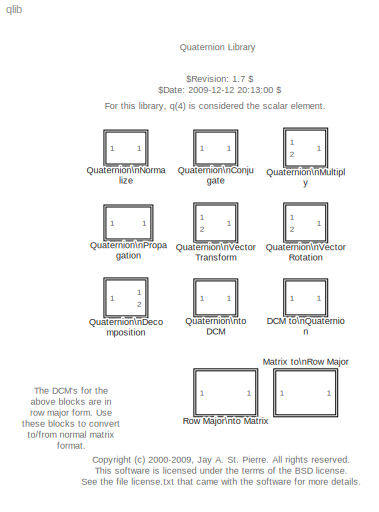
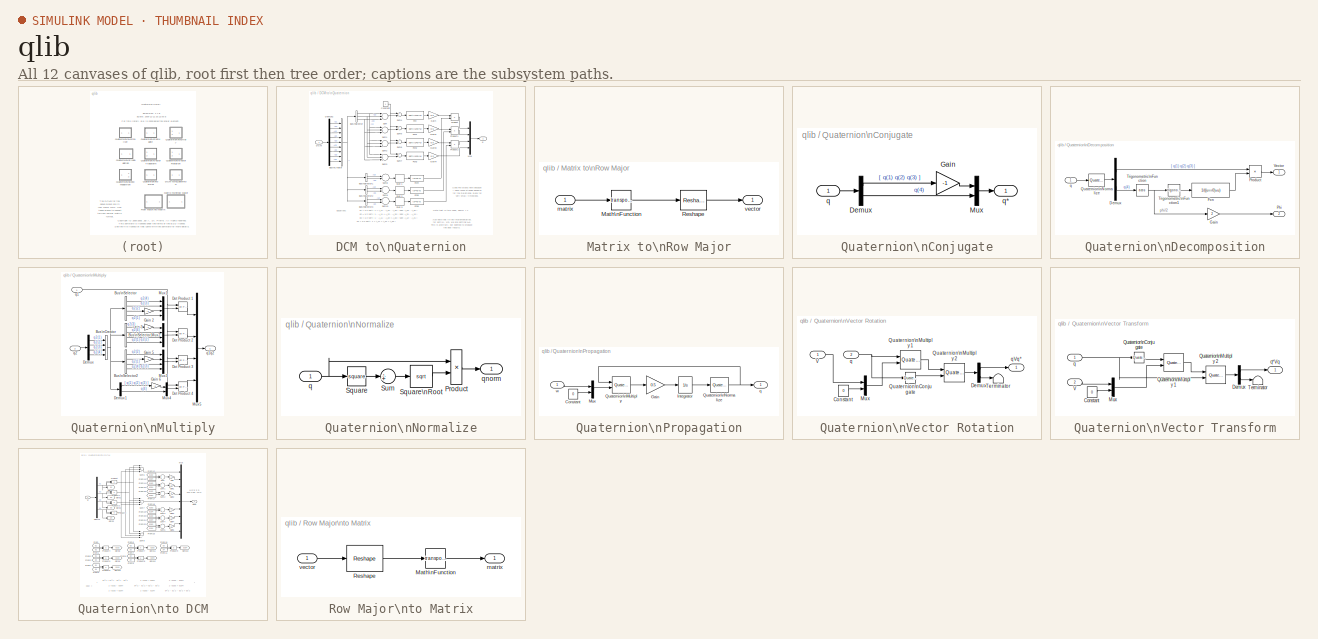
[diagram: thumbnail index - all 12 canvases of the model, root first then tree order]
MODEL qlib
KIND library
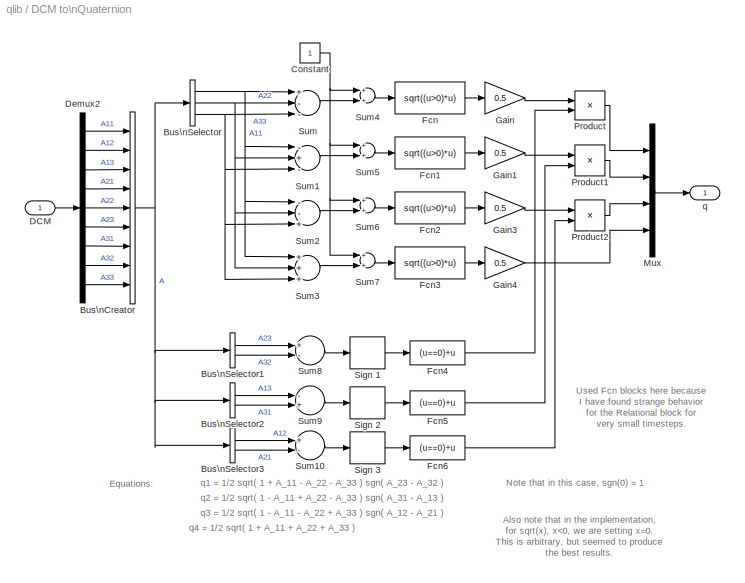
BLOCK [SubSystem] DCM to\nQuaternion
  FunctionWithSeparateData = off
  MaskDescription = Converts a direction cosine matrix (DCM) to a quaternion that would perform the equivalent vector transformation, i.e., q*vq = Rv, where R is the DCM, v is a vector, and q is the quaternion.\n\nNote that for purposes of quaternion-vector multiplication, a vector is treated as a quaterion with a scalar element of zero.
  MaskIconFrame = on
  MaskIconOpaque = on
  MaskIconRotate = none
  MaskIconUnits = autoscale
  MaskType = DCM to Quaternion
  MinAlgLoopOccurrences = off
  Ports = [1, 1]
  RTWSystemCode = Auto
BLOCK [BusCreator] DCM to\nQuaternion/Bus\nCreator
  DisplayOption = bar
  Inputs = 9
  Ports = [9, 1]
BLOCK [BusSelector] DCM to\nQuaternion/Bus\nSelector
  OutputSignals = A11,A22,A33
  Ports = [1, 3]
BLOCK [BusSelector] DCM to\nQuaternion/Bus\nSelector1
  OutputSignals = A23,A32
  Ports = [1, 2]
BLOCK [BusSelector] DCM to\nQuaternion/Bus\nSelector2
  OutputSignals = A13,A31
  Ports = [1, 2]
BLOCK [BusSelector] DCM to\nQuaternion/Bus\nSelector3
  OutputSignals = A12,A21
  Ports = [1, 2]
BLOCK [Constant] DCM to\nQuaternion/Constant
BLOCK [Inport] DCM to\nQuaternion/DCM
  IconDisplay = Port number
  PortDimensions = 9
BLOCK [Demux] DCM to\nQuaternion/Demux2
  Outputs = 9
  Ports = [1, 9]
BLOCK [Fcn] DCM to\nQuaternion/Fcn
  Expr = sqrt((u>0)*u)
BLOCK [Fcn] DCM to\nQuaternion/Fcn1
  Expr = sqrt((u>0)*u)
BLOCK [Fcn] DCM to\nQuaternion/Fcn2
  Expr = sqrt((u>0)*u)
BLOCK [Fcn] DCM to\nQuaternion/Fcn3
  Expr = sqrt((u>0)*u)
BLOCK [Fcn] DCM to\nQuaternion/Fcn4
  Expr = (u==0)+u
BLOCK [Fcn] DCM to\nQuaternion/Fcn5
  Expr = (u==0)+u
BLOCK [Fcn] DCM to\nQuaternion/Fcn6
  Expr = (u==0)+u
BLOCK [Gain] DCM to\nQuaternion/Gain
  Gain = 0.5
BLOCK [Gain] DCM to\nQuaternion/Gain1
  Gain = 0.5
BLOCK [Gain] DCM to\nQuaternion/Gain3
  Gain = 0.5
BLOCK [Gain] DCM to\nQuaternion/Gain4
  Gain = 0.5
BLOCK [Mux] DCM to\nQuaternion/Mux
  DisplayOption = bar
  Ports = [4, 1]
BLOCK [Product] DCM to\nQuaternion/Product
  CollapseMode = All dimensions
  Ports = [2, 1]
BLOCK [Product] DCM to\nQuaternion/Product1
  CollapseMode = All dimensions
  Ports = [2, 1]
BLOCK [Product] DCM to\nQuaternion/Product2
  CollapseMode = All dimensions
  Ports = [2, 1]
BLOCK [Signum] DCM to\nQuaternion/Sign 1
BLOCK [Signum] DCM to\nQuaternion/Sign 2
BLOCK [Signum] DCM to\nQuaternion/Sign 3
BLOCK [Sum] DCM to\nQuaternion/Sum
  CollapseMode = All dimensions
  Inputs = +--
  Ports = [3, 1]
BLOCK [Sum] DCM to\nQuaternion/Sum1
  CollapseMode = All dimensions
  Inputs = -+-
  Ports = [3, 1]
BLOCK [Sum] DCM to\nQuaternion/Sum10
  CollapseMode = All dimensions
  Inputs = +-
  Ports = [2, 1]
BLOCK [Sum] DCM to\nQuaternion/Sum2
  CollapseMode = All dimensions
  Inputs = --+
  Ports = [3, 1]
BLOCK [Sum] DCM to\nQuaternion/Sum3
  CollapseMode = All dimensions
  Inputs = +++
  Ports = [3, 1]
BLOCK [Sum] DCM to\nQuaternion/Sum4
  CollapseMode = All dimensions
  Ports = [2, 1]
BLOCK [Sum] DCM to\nQuaternion/Sum5
  CollapseMode = All dimensions
  Ports = [2, 1]
BLOCK [Sum] DCM to\nQuaternion/Sum6
  CollapseMode = All dimensions
  Ports = [2, 1]
BLOCK [Sum] DCM to\nQuaternion/Sum7
  CollapseMode = All dimensions
  Ports = [2, 1]
BLOCK [Sum] DCM to\nQuaternion/Sum8
  CollapseMode = All dimensions
  Inputs = +-
  Ports = [2, 1]
BLOCK [Sum] DCM to\nQuaternion/Sum9
  CollapseMode = All dimensions
  Inputs = -+
  Ports = [2, 1]
BLOCK [Outport] DCM to\nQuaternion/q
  IconDisplay = Port number
  InitialOutput = [0 0 0 1]
BLOCK [SubSystem] Matrix to\nRow Major
  FunctionWithSeparateData = off
  MaskDescription = Converts a matrix to row major vector form.
  MaskDisplay = fprintf('Matrix to\\nRow Major');
  MaskIconFrame = on
  MaskIconOpaque = on
  MaskIconRotate = none
  MaskIconUnits = autoscale
  MaskType = Matrix to Row Major
  MinAlgLoopOccurrences = off
  Ports = [1, 1]
  RTWSystemCode = Auto
BLOCK [Math] Matrix to\nRow Major/Math\nFunction
  AttributesFormatString = %<Operator>
  Operator = transpose
  OutDataType = sfix(16)
  OutScaling = 2^0
  Ports = [1, 1]
BLOCK [Reshape] Matrix to\nRow Major/Reshape
  AttributesFormatString = Output: %<OutputDimensionality>
  OutputDimensions = [3, 3]
BLOCK [Inport] Matrix to\nRow Major/matrix
  IconDisplay = Port number
BLOCK [Outport] Matrix to\nRow Major/vector
  IconDisplay = Port number
BLOCK [SubSystem] Quaternion\nConjugate
  FunctionWithSeparateData = off
  MaskDescription = q* = [ -q(1)  -q(2)  -q(3)  q(4) ]
  MaskDisplay = disp('q*')
  MaskIconFrame = on
  MaskIconOpaque = on
  MaskIconRotate = none
  MaskIconUnits = pixels
  MaskType = Quaternion Conjugate
  MinAlgLoopOccurrences = off
  Ports = [1, 1]
  RTWSystemCode = Auto
BLOCK [Demux] Quaternion\nConjugate/Demux
  Outputs = [3 1]
  Ports = [1, 2]
BLOCK [Gain] Quaternion\nConjugate/Gain
  Gain = -1
BLOCK [Mux] Quaternion\nConjugate/Mux
  DisplayOption = bar
  Inputs = 2
  Ports = [2, 1]
BLOCK [Inport] Quaternion\nConjugate/q
  IconDisplay = Port number
  PortDimensions = 4
BLOCK [Outport] Quaternion\nConjugate/q*
  IconDisplay = Port number
  InitialOutput = 0
BLOCK [SubSystem] Quaternion\nDecomposition
  FunctionWithSeparateData = off
  MaskDescription = Breaks down a quaternion into its unit vector and total rotation angle about that vector.  If the components of the quaternion are denoted:\n\n     q = [ q(1)  q(2)  q(3)  q(4) ]\n\nThen:\n\n     q(1) = v1 sin(phi/2)\n     q(2) = v2 sin(phi/2)\n     q(3) = v3 sin(phi/2)\n     q(4) = cos(phi/2)\n\nWhere phi is the amount of rotation about the unit vector [ v1  v2  v3 ].
  MaskIconFrame = on
  MaskIconOpaque = on
  MaskIconRotate = none
  MaskIconUnits = pixels
  MaskType = Quaternion Decomposition
  MinAlgLoopOccurrences = off
  Ports = [1, 2]
  RTWSystemCode = Auto
BLOCK [Demux] Quaternion\nDecomposition/Demux
  Outputs = [3 1]
  Ports = [1, 2]
BLOCK [Fcn] Quaternion\nDecomposition/Fcn
  Expr = 1/((u==0)+u)
BLOCK [Gain] Quaternion\nDecomposition/Gain
  Gain = 2
BLOCK [Outport] Quaternion\nDecomposition/Phi
  IconDisplay = Port number
  InitialOutput = 0
  Port = 2
BLOCK [Product] Quaternion\nDecomposition/Product
  CollapseMode = All dimensions
  Ports = [2, 1]
BLOCK [Reference] Quaternion\nDecomposition/Quaternion\nNormalize  REF=qlib/Quaternion\nNormalize  (lib defined in mdl_ab4d631060dc, slx_f623738634e3)
  Ports = [1, 1]
  SourceBlock = qlib/Quaternion\nNormalize
  SourceType = Quaternion Normalize
BLOCK [Trigonometry] Quaternion\nDecomposition/Trigonometric\nFunction
  Operator = acos
  Ports = [1, 1]
BLOCK [Trigonometry] Quaternion\nDecomposition/Trigonometric\nFunction1
  Ports = [1, 1]
BLOCK [Outport] Quaternion\nDecomposition/Vector
  IconDisplay = Port number
  InitialOutput = 0
BLOCK [Inport] Quaternion\nDecomposition/q
  IconDisplay = Port number
  PortDimensions = 4
BLOCK [SubSystem] Quaternion\nMultiply
  FunctionWithSeparateData = off
  MaskDescription = Multiplies input quaternions: qout = (q1)(q2)
  MaskIconFrame = on
  MaskIconOpaque = on
  MaskIconRotate = none
  MaskIconUnits = pixels
  MaskType = Quaternion Multiply
  MinAlgLoopOccurrences = off
  Ports = [2, 1]
  RTWSystemCode = Auto
BLOCK [BusCreator] Quaternion\nMultiply/Bus\nCreator
  DisplayOption = bar
  Ports = [4, 1]
BLOCK [BusSelector] Quaternion\nMultiply/Bus\nSelector
  OutputSignals = q2(4),q2(3),q2(2),q2(1)
  Ports = [1, 4]
BLOCK [BusSelector] Quaternion\nMultiply/Bus\nSelector1
  OutputSignals = q2(3),q2(4),q2(1),q2(2)
  Ports = [1, 4]
BLOCK [BusSelector] Quaternion\nMultiply/Bus\nSelector2
  OutputSignals = q2(2),q2(1),q2(4),q2(3)
  Ports = [1, 4]
BLOCK [Demux] Quaternion\nMultiply/Demux
  Ports = [1, 4]
BLOCK [Demux] Quaternion\nMultiply/Demux1
  Outputs = [3 1]
  Ports = [1, 2]
BLOCK [Reference] Quaternion\nMultiply/Dot Product 1  REF=simulink/Math\nOperations/Dot Product
  DoSatur = off
  InputSameDT = on
  LockScale = off
  OutDataType = sfix(16)
  OutDataTypeStr = Inherit: Inherit via internal rule
  OutScaling = 2^-10
  OutputDataTypeScalingMode = Inherit via internal rule
  Ports = [2, 1]
  RndMeth = Floor
  SourceBlock = simulink/Math\nOperations/Dot Product
  SourceType = Dot Product
BLOCK [Reference] Quaternion\nMultiply/Dot Product 2  REF=simulink/Math\nOperations/Dot Product
  DoSatur = off
  InputSameDT = on
  LockScale = off
  OutDataType = sfix(16)
  OutDataTypeStr = Inherit: Inherit via internal rule
  OutScaling = 2^-10
  OutputDataTypeScalingMode = Inherit via internal rule
  Ports = [2, 1]
  RndMeth = Floor
  SourceBlock = simulink/Math\nOperations/Dot Product
  SourceType = Dot Product
BLOCK [Reference] Quaternion\nMultiply/Dot Product 3  REF=simulink/Math\nOperations/Dot Product
  DoSatur = off
  InputSameDT = on
  LockScale = off
  OutDataType = sfix(16)
  OutDataTypeStr = Inherit: Inherit via internal rule
  OutScaling = 2^-10
  OutputDataTypeScalingMode = Inherit via internal rule
  Ports = [2, 1]
  RndMeth = Floor
  SourceBlock = simulink/Math\nOperations/Dot Product
  SourceType = Dot Product
BLOCK [Reference] Quaternion\nMultiply/Dot Product 4  REF=simulink/Math\nOperations/Dot Product
  DoSatur = off
  InputSameDT = on
  LockScale = off
  OutDataType = sfix(16)
  OutDataTypeStr = Inherit: Inherit via internal rule
  OutScaling = 2^-10
  OutputDataTypeScalingMode = Inherit via internal rule
  Ports = [2, 1]
  RndMeth = Floor
  SourceBlock = simulink/Math\nOperations/Dot Product
  SourceType = Dot Product
BLOCK [Gain] Quaternion\nMultiply/Gain 2
  Gain = -1
BLOCK [Gain] Quaternion\nMultiply/Gain 3
  Gain = -1
BLOCK [Gain] Quaternion\nMultiply/Gain 5
  Gain = -1
BLOCK [Gain] Quaternion\nMultiply/Gain 6
  Gain = -1
BLOCK [Mux] Quaternion\nMultiply/Mux1
  DisplayOption = bar
  Ports = [4, 1]
BLOCK [Mux] Quaternion\nMultiply/Mux2
  DisplayOption = bar
  Ports = [4, 1]
BLOCK [Mux] Quaternion\nMultiply/Mux3
  DisplayOption = bar
  Ports = [4, 1]
BLOCK [Mux] Quaternion\nMultiply/Mux4
  DisplayOption = bar
  Inputs = 2
  Ports = [2, 1]
BLOCK [Mux] Quaternion\nMultiply/Mux5
  DisplayOption = bar
  Ports = [4, 1]
BLOCK [Inport] Quaternion\nMultiply/q1
  IconDisplay = Port number
  PortDimensions = 4
BLOCK [Outport] Quaternion\nMultiply/q1q2
  IconDisplay = Port number
  InitialOutput = 0
BLOCK [Inport] Quaternion\nMultiply/q2
  IconDisplay = Port number
  Port = 2
  PortDimensions = 4
BLOCK [SubSystem] Quaternion\nNormalize
  FunctionWithSeparateData = off
  MaskDescription = qout = q/sqrt(q(1)^2+q(2)^2+q(3)^2+q(4)^2)
  MaskDisplay = text(width/2-scale*3, (height/2+scale*10), 'q')\ntext(width/2-scale*8, (height/2-scale*6), '||q||')\nplot([width/2-scale*10 width/2+scale*10], height/2*[1 1])
  MaskIconFrame = on
  MaskIconOpaque = on
  MaskIconRotate = none
  MaskIconUnits = pixels
  MaskInitialization = pos = get_param(gcb, 'Position');\nwidth = pos(3) - pos(1); height = pos(4) - pos(2);\nfontsize = get_param(gcb, 'fontsize');\nif fontsize==-1, scale=1; else scale=fontsize/10; end
  MaskType = Quaternion Normalize
  MinAlgLoopOccurrences = off
  Ports = [1, 1]
  RTWSystemCode = Auto
BLOCK [Product] Quaternion\nNormalize/Product
  CollapseMode = All dimensions
  Inputs = */
  Ports = [2, 1]
BLOCK [Math] Quaternion\nNormalize/Square
  Operator = square
  Ports = [1, 1]
BLOCK [Math] Quaternion\nNormalize/Square\nRoot
  Operator = sqrt
  Ports = [1, 1]
BLOCK [Sum] Quaternion\nNormalize/Sum
  CollapseMode = All dimensions
  IconShape = round
  Inputs = 1
  Ports = [1, 1]
BLOCK [Inport] Quaternion\nNormalize/q
  IconDisplay = Port number
  PortDimensions = 4
BLOCK [Outport] Quaternion\nNormalize/qnorm
  IconDisplay = Port number
  InitialOutput = 0
BLOCK [SubSystem] Quaternion\nPropagation
  FunctionWithSeparateData = off
  MaskDescription = Integrates dq/dt to propagate a quaternion, where:\n\n    dq/dt = (1/2) (q) ([w 0])\n \nand the product (q)([w 0]) is calculated as a quaternion multiplication.\n\nThe input rates, w, are inertial, but written in the body frame coordinates.  The quaternion indicates the orientation of the body frame with respect to the inertial frame.  The initlal quaternion, q0, must be specfied below.\n\nThe qua...<+42ch>
  MaskDisplay = plot(sx,sy);\ntext(width/2-7*scale, height/2, 'q dt');\nplot(tx,ty)\n\n
  MaskEnableString = on
  MaskIconFrame = on
  MaskIconOpaque = on
  MaskIconRotate = none
  MaskIconUnits = pixels
  MaskInitialization = pos = get_param(gcb, 'Position');\nwidth = pos(3) - pos(1); height = pos(4) - pos(2);\nfontsize = get_param(gcb, 'fontsize');\nif fontsize==-1, scale=1; else scale=fontsize/10; end\n\nt1=-pi/2:(pi/2)/20:0; t2=pi:-(pi/2)/20:(pi/2);\nx=[cos(t1)  cos(t2)+2]; y=[sin(t1)+1  sin(t2)+4];\n\nny=0.9*y/max(y)*scale;\nnx=0.9*x/max(y)*scale;\n\ns=20;\nsy=s*(ny - max(ny)/2) + height/2;\nsx=s*nx + width/2 - 15*...<+96ch>
  MaskPromptString = q0
  MaskStyleString = edit
  MaskToolTipString = on
  MaskTunableValueString = on
  MaskType = Quaternion Propagation
  MaskValueString = [0 0 0 1]
  MaskVariables = q0=@1;
  MaskVisibilityString = on
  MinAlgLoopOccurrences = off
  Ports = [1, 1]
  RTWSystemCode = Auto
BLOCK [Constant] Quaternion\nPropagation/Constant
  Value = 0
BLOCK [Gain] Quaternion\nPropagation/Gain
  Gain = 0.5
BLOCK [Integrator] Quaternion\nPropagation/Integrator
  InitialCondition = q0
  Ports = [1, 1]
BLOCK [Mux] Quaternion\nPropagation/Mux
  DisplayOption = bar
  Inputs = 2
  Ports = [2, 1]
BLOCK [Reference] Quaternion\nPropagation/Quaternion\nMultiply  REF=qlib/Quaternion\nMultiply  (lib defined in mdl_ab4d631060dc, slx_f623738634e3)
  Ports = [2, 1]
  SourceBlock = qlib/Quaternion\nMultiply
  SourceType = Quaternion Multiply
BLOCK [Reference] Quaternion\nPropagation/Quaternion\nNormalize  REF=qlib/Quaternion\nNormalize  (lib defined in mdl_ab4d631060dc, slx_f623738634e3)
  Ports = [1, 1]
  SourceBlock = qlib/Quaternion\nNormalize
  SourceType = Quaternion Normalize
BLOCK [Outport] Quaternion\nPropagation/q
  IconDisplay = Port number
  InitialOutput = 0
BLOCK [Inport] Quaternion\nPropagation/w
  IconDisplay = Port number
  PortDimensions = 3
BLOCK [SubSystem] Quaternion\nVector Rotation
  FunctionWithSeparateData = off
  MaskDescription = Rotates a vector using a quaternion:\n\n    vout = (q)(v)(q*)\n\nThe first input is the vector, the second input is the quaternion.\n\nNote that for purposes of quaternion-vector multiplication, a vector is treated as a quaterion with a scalar element of zero.
  MaskIconFrame = on
  MaskIconOpaque = on
  MaskIconRotate = none
  MaskIconUnits = pixels
  MaskType = Quaternion Vector Rotation
  MinAlgLoopOccurrences = off
  Ports = [2, 1]
  RTWSystemCode = Auto
BLOCK [Constant] Quaternion\nVector Rotation/Constant
  Value = 0
BLOCK [Demux] Quaternion\nVector Rotation/Demux
  Outputs = [3 1]
  Ports = [1, 2]
BLOCK [Mux] Quaternion\nVector Rotation/Mux
  DisplayOption = bar
  Inputs = 2
  Ports = [2, 1]
BLOCK [Reference] Quaternion\nVector Rotation/Quaternion\nConjugate  REF=qlib/Quaternion\nConjugate  (lib defined in mdl_ab4d631060dc, slx_f623738634e3)
  Ports = [1, 1]
  SourceBlock = qlib/Quaternion\nConjugate
  SourceType = Quaternion Conjugate
BLOCK [Reference] Quaternion\nVector Rotation/Quaternion\nMultiply 1  REF=qlib/Quaternion\nMultiply  (lib defined in mdl_ab4d631060dc, slx_f623738634e3)
  Ports = [2, 1]
  SourceBlock = qlib/Quaternion\nMultiply
  SourceType = Quaternion Multiply
BLOCK [Reference] Quaternion\nVector Rotation/Quaternion\nMultiply 2  REF=qlib/Quaternion\nMultiply  (lib defined in mdl_ab4d631060dc, slx_f623738634e3)
  Ports = [2, 1]
  SourceBlock = qlib/Quaternion\nMultiply
  SourceType = Quaternion Multiply
BLOCK [Terminator] Quaternion\nVector Rotation/Terminator
BLOCK [Inport] Quaternion\nVector Rotation/V
  IconDisplay = Port number
  PortDimensions = 3
BLOCK [Inport] Quaternion\nVector Rotation/q
  IconDisplay = Port number
  Port = 2
  PortDimensions = 4
BLOCK [Outport] Quaternion\nVector Rotation/qVq*
  IconDisplay = Port number
  InitialOutput = 0
BLOCK [SubSystem] Quaternion\nVector Transform
  FunctionWithSeparateData = off
  MaskDescription = Transforms a vector using a quaternion:\n\n    vout = (q*)(v)(q)\n\nThe first input is the quaternion, the second input is the vector.\n\nNote that for purposes of quaternion-vector multiplication, a vector is treated as a quaterion with a scalar element of zero.
  MaskIconFrame = on
  MaskIconOpaque = on
  MaskIconRotate = none
  MaskIconUnits = pixels
  MaskType = Quaternion Vector Transform
  MinAlgLoopOccurrences = off
  Ports = [2, 1]
  RTWSystemCode = Auto
BLOCK [Constant] Quaternion\nVector Transform/Constant
  Value = 0
BLOCK [Demux] Quaternion\nVector Transform/Demux
  Outputs = [3 1]
  Ports = [1, 2]
BLOCK [Mux] Quaternion\nVector Transform/Mux
  DisplayOption = bar
  Inputs = 2
  Ports = [2, 1]
BLOCK [Reference] Quaternion\nVector Transform/Quaternion\nConjugate  REF=qlib/Quaternion\nConjugate  (lib defined in mdl_ab4d631060dc, slx_f623738634e3)
  Ports = [1, 1]
  SourceBlock = qlib/Quaternion\nConjugate
  SourceType = Quaternion Conjugate
BLOCK [Reference] Quaternion\nVector Transform/Quaternion\nMultiply 1  REF=qlib/Quaternion\nMultiply  (lib defined in mdl_ab4d631060dc, slx_f623738634e3)
  Ports = [2, 1]
  SourceBlock = qlib/Quaternion\nMultiply
  SourceType = Quaternion Multiply
BLOCK [Reference] Quaternion\nVector Transform/Quaternion\nMultiply 2  REF=qlib/Quaternion\nMultiply  (lib defined in mdl_ab4d631060dc, slx_f623738634e3)
  Ports = [2, 1]
  SourceBlock = qlib/Quaternion\nMultiply
  SourceType = Quaternion Multiply
BLOCK [Terminator] Quaternion\nVector Transform/Terminator
BLOCK [Inport] Quaternion\nVector Transform/V
  IconDisplay = Port number
  Port = 2
  PortDimensions = 3
BLOCK [Inport] Quaternion\nVector Transform/q
  IconDisplay = Port number
  PortDimensions = 4
BLOCK [Outport] Quaternion\nVector Transform/q*Vq
  IconDisplay = Port number
  InitialOutput = 0
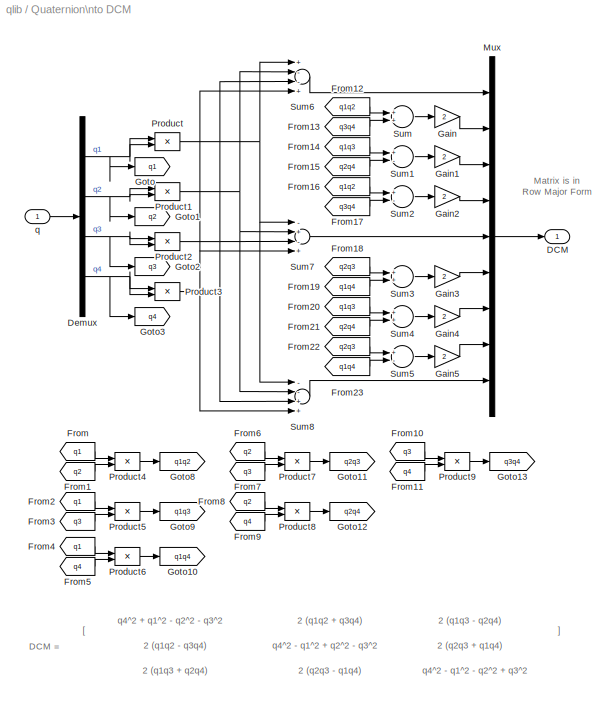
BLOCK [SubSystem] Quaternion\nto DCM
  FunctionWithSeparateData = off
  MaskDescription = Converts a quaternion to the direction cosine matrix (DCM) that would perform the equivalent vector transformation, i.e., Rv = q*vq, where R is the DCM, v is a vector, and q is the quaternion.\n\nNote that for purposes of quaternion-vector multiplication, a vector is treated as a quaterion with a scalar element of zero.
  MaskIconFrame = on
  MaskIconOpaque = on
  MaskIconRotate = none
  MaskIconUnits = autoscale
  MaskType = Quaternion to DCM
  MinAlgLoopOccurrences = off
  Ports = [1, 1]
  RTWSystemCode = Auto
BLOCK [Outport] Quaternion\nto DCM/DCM
  IconDisplay = Port number
  InitialOutput = 0
BLOCK [Demux] Quaternion\nto DCM/Demux
  Ports = [1, 4]
BLOCK [From] Quaternion\nto DCM/From
  CloseFcn = tagdialog Close
  GotoTag = q1
BLOCK [From] Quaternion\nto DCM/From1
  CloseFcn = tagdialog Close
  GotoTag = q2
BLOCK [From] Quaternion\nto DCM/From10
  CloseFcn = tagdialog Close
  GotoTag = q3
BLOCK [From] Quaternion\nto DCM/From11
  CloseFcn = tagdialog Close
  GotoTag = q4
BLOCK [From] Quaternion\nto DCM/From12
  CloseFcn = tagdialog Close
  GotoTag = q1q2
BLOCK [From] Quaternion\nto DCM/From13
  CloseFcn = tagdialog Close
  GotoTag = q3q4
BLOCK [From] Quaternion\nto DCM/From14
  CloseFcn = tagdialog Close
  GotoTag = q1q3
BLOCK [From] Quaternion\nto DCM/From15
  CloseFcn = tagdialog Close
  GotoTag = q2q4
BLOCK [From] Quaternion\nto DCM/From16
  CloseFcn = tagdialog Close
  GotoTag = q1q2
BLOCK [From] Quaternion\nto DCM/From17
  CloseFcn = tagdialog Close
  GotoTag = q3q4
BLOCK [From] Quaternion\nto DCM/From18
  CloseFcn = tagdialog Close
  GotoTag = q2q3
BLOCK [From] Quaternion\nto DCM/From19
  CloseFcn = tagdialog Close
  GotoTag = q1q4
BLOCK [From] Quaternion\nto DCM/From2
  CloseFcn = tagdialog Close
  GotoTag = q1
BLOCK [From] Quaternion\nto DCM/From20
  CloseFcn = tagdialog Close
  GotoTag = q1q3
BLOCK [From] Quaternion\nto DCM/From21
  CloseFcn = tagdialog Close
  GotoTag = q2q4
BLOCK [From] Quaternion\nto DCM/From22
  CloseFcn = tagdialog Close
  GotoTag = q2q3
BLOCK [From] Quaternion\nto DCM/From23
  CloseFcn = tagdialog Close
  GotoTag = q1q4
BLOCK [From] Quaternion\nto DCM/From3
  CloseFcn = tagdialog Close
  GotoTag = q3
BLOCK [From] Quaternion\nto DCM/From4
  CloseFcn = tagdialog Close
  GotoTag = q1
BLOCK [From] Quaternion\nto DCM/From5
  CloseFcn = tagdialog Close
  GotoTag = q4
BLOCK [From] Quaternion\nto DCM/From6
  CloseFcn = tagdialog Close
  GotoTag = q2
BLOCK [From] Quaternion\nto DCM/From7
  CloseFcn = tagdialog Close
  GotoTag = q3
BLOCK [From] Quaternion\nto DCM/From8
  CloseFcn = tagdialog Close
  GotoTag = q2
BLOCK [From] Quaternion\nto DCM/From9
  CloseFcn = tagdialog Close
  GotoTag = q4
BLOCK [Gain] Quaternion\nto DCM/Gain
  Gain = 2
BLOCK [Gain] Quaternion\nto DCM/Gain1
  Gain = 2
BLOCK [Gain] Quaternion\nto DCM/Gain2
  Gain = 2
BLOCK [Gain] Quaternion\nto DCM/Gain3
  Gain = 2
BLOCK [Gain] Quaternion\nto DCM/Gain4
  Gain = 2
BLOCK [Gain] Quaternion\nto DCM/Gain5
  Gain = 2
BLOCK [Goto] Quaternion\nto DCM/Goto
  GotoTag = q1
  TagVisibility = local
BLOCK [Goto] Quaternion\nto DCM/Goto1
  GotoTag = q2
  TagVisibility = local
BLOCK [Goto] Quaternion\nto DCM/Goto10
  GotoTag = q1q4
  TagVisibility = local
BLOCK [Goto] Quaternion\nto DCM/Goto11
  GotoTag = q2q3
  TagVisibility = local
BLOCK [Goto] Quaternion\nto DCM/Goto12
  GotoTag = q2q4
  TagVisibility = local
BLOCK [Goto] Quaternion\nto DCM/Goto13
  GotoTag = q3q4
  TagVisibility = local
BLOCK [Goto] Quaternion\nto DCM/Goto2
  GotoTag = q3
  TagVisibility = local
BLOCK [Goto] Quaternion\nto DCM/Goto3
  GotoTag = q4
  TagVisibility = local
BLOCK [Goto] Quaternion\nto DCM/Goto8
  GotoTag = q1q2
  TagVisibility = local
BLOCK [Goto] Quaternion\nto DCM/Goto9
  GotoTag = q1q3
  TagVisibility = local
BLOCK [Mux] Quaternion\nto DCM/Mux
  Inputs = 9
  Ports = [9, 1]
BLOCK [Product] Quaternion\nto DCM/Product
  CollapseMode = All dimensions
  Ports = [2, 1]
BLOCK [Product] Quaternion\nto DCM/Product1
  CollapseMode = All dimensions
  Ports = [2, 1]
BLOCK [Product] Quaternion\nto DCM/Product2
  CollapseMode = All dimensions
  Ports = [2, 1]
BLOCK [Product] Quaternion\nto DCM/Product3
  CollapseMode = All dimensions
  Ports = [2, 1]
BLOCK [Product] Quaternion\nto DCM/Product4
  CollapseMode = All dimensions
  Ports = [2, 1]
BLOCK [Product] Quaternion\nto DCM/Product5
  CollapseMode = All dimensions
  Ports = [2, 1]
BLOCK [Product] Quaternion\nto DCM/Product6
  CollapseMode = All dimensions
  Ports = [2, 1]
BLOCK [Product] Quaternion\nto DCM/Product7
  CollapseMode = All dimensions
  Ports = [2, 1]
BLOCK [Product] Quaternion\nto DCM/Product8
  CollapseMode = All dimensions
  Ports = [2, 1]
BLOCK [Product] Quaternion\nto DCM/Product9
  CollapseMode = All dimensions
  Ports = [2, 1]
BLOCK [Sum] Quaternion\nto DCM/Sum
  CollapseMode = All dimensions
  Ports = [2, 1]
BLOCK [Sum] Quaternion\nto DCM/Sum1
  CollapseMode = All dimensions
  Inputs = +-
  Ports = [2, 1]
BLOCK [Sum] Quaternion\nto DCM/Sum2
  CollapseMode = All dimensions
  Inputs = +-
  Ports = [2, 1]
BLOCK [Sum] Quaternion\nto DCM/Sum3
  CollapseMode = All dimensions
  Ports = [2, 1]
BLOCK [Sum] Quaternion\nto DCM/Sum4
  CollapseMode = All dimensions
  Ports = [2, 1]
BLOCK [Sum] Quaternion\nto DCM/Sum5
  CollapseMode = All dimensions
  Inputs = +-
  Ports = [2, 1]
BLOCK [Sum] Quaternion\nto DCM/Sum6
  CollapseMode = All dimensions
  Inputs = +--+
  Ports = [4, 1]
BLOCK [Sum] Quaternion\nto DCM/Sum7
  CollapseMode = All dimensions
  Inputs = -+-+
  Ports = [4, 1]
BLOCK [Sum] Quaternion\nto DCM/Sum8
  CollapseMode = All dimensions
  Inputs = --++
  Ports = [4, 1]
BLOCK [Inport] Quaternion\nto DCM/q
  IconDisplay = Port number
  PortDimensions = 4
BLOCK [SubSystem] Row Major\nto Matrix
  FunctionWithSeparateData = off
  MaskCallbackString = |
  MaskDescription = Converts a row major representation of a matrix to a normal matrix.
  MaskDisplay = fprintf('Row Major\\nto Matrix\\n')\ntext(1, 0, ...\n    sprintf('%dx%d', rows, columns), ...\n    'HorizontalAlignment', 'Right', ...\n    'VerticalAlignment', 'Bottom');
  MaskEnableString = on,on
  MaskIconFrame = on
  MaskIconOpaque = on
  MaskIconRotate = none
  MaskIconUnits = normalized
  MaskPromptString = rows|columns
  MaskStyleString = edit,edit
  MaskTabNameString = ,
  MaskToolTipString = on,on
  MaskTunableValueString = on,on
  MaskType = Row Major to Matrix
  MaskValueString = 3|3
  MaskVarAliasString = ,
  MaskVariables = rows=@1;columns=@2;
  MaskVisibilityString = on,on
  MinAlgLoopOccurrences = off
  Ports = [1, 1]
  RTWSystemCode = Auto
BLOCK [Math] Row Major\nto Matrix/Math\nFunction
  AttributesFormatString = %<Operator>
  Operator = transpose
  OutDataType = sfix(16)
  OutScaling = 2^0
  Ports = [1, 1]
BLOCK [Reshape] Row Major\nto Matrix/Reshape
  AttributesFormatString = Output Dimensions = %<OutputDimensions>
  OutputDimensionality = Customize
  OutputDimensions = [3, 3]
BLOCK [Outport] Row Major\nto Matrix/matrix
  IconDisplay = Port number
BLOCK [Inport] Row Major\nto Matrix/vector
  IconDisplay = Port number
ANNOTATION (root): $Revision: 1.7 $\n$Date: 2009-12-12 20:13:00 $
ANNOTATION (root): <copyright redacted>\nThis software is licensed under the terms of the BSD license.\nSee the file license.txt that came with the software for more details.
ANNOTATION (root): For this library, q(4) is considered the scalar element.
ANNOTATION (root): Quaternion Library
ANNOTATION (root): The DCM's for the\nabove blocks are in\nrow major form. Use\nthese blocks to convert\nto/from normal matrix\nformat.
ANNOTATION DCM to\nQuaternion: Also note that in the implementation,\nfor sqrt(x), x<0, we are setting x=0.\nThis is arbitrary, but seemed to produce\nthe best results.
ANNOTATION DCM to\nQuaternion: Equations:
ANNOTATION DCM to\nQuaternion: Note that in this case, sgn(0) = 1
ANNOTATION DCM to\nQuaternion: Used Fcn blocks here because\nI have found strange behavior\nfor the Relational block for\nvery small timesteps.
ANNOTATION DCM to\nQuaternion: q1 = 1/2 sqrt( 1 + A_11 - A_22 - A_33 ) sgn( A_23 - A_32 )
ANNOTATION DCM to\nQuaternion: q2 = 1/2 sqrt( 1 - A_11 + A_22 - A_33 ) sgn( A_31 - A_13 )
ANNOTATION DCM to\nQuaternion: q3 = 1/2 sqrt( 1 - A_11 - A_22 + A_33 ) sgn( A_12 - A_21 )
ANNOTATION DCM to\nQuaternion: q4 = 1/2 sqrt( 1 + A_11 + A_22 + A_33 )
ANNOTATION Quaternion\nDecomposition: phi/2
ANNOTATION Quaternion\nto DCM: q4^2 - q1^2 + q2^2 - q3^2
ANNOTATION Quaternion\nto DCM: q4^2 - q1^2 - q2^2 + q3^2
ANNOTATION Quaternion\nto DCM: 2 (q1q2 + q3q4)
ANNOTATION Quaternion\nto DCM: 2 (q1q2 - q3q4)
ANNOTATION Quaternion\nto DCM: 2 (q1q3 + q2q4)
ANNOTATION Quaternion\nto DCM: 2 (q1q3 - q2q4)
ANNOTATION Quaternion\nto DCM: 2 (q2q3 + q1q4)
ANNOTATION Quaternion\nto DCM: 2 (q2q3 - q1q4)
ANNOTATION Quaternion\nto DCM: DCM =
ANNOTATION Quaternion\nto DCM: Matrix is in\nRow Major Form
ANNOTATION Quaternion\nto DCM: [
ANNOTATION Quaternion\nto DCM: ]
ANNOTATION Quaternion\nto DCM: q4^2 + q1^2 - q2^2 - q3^2
NET DCM to\nQuaternion/Bus\nCreator:1 -> DCM to\nQuaternion/Bus\nSelector1:1, DCM to\nQuaternion/Bus\nSelector2:1, DCM to\nQuaternion/Bus\nSelector3:1, DCM to\nQuaternion/Bus\nSelector:1
LINE DCM to\nQuaternion/Bus\nSelector1:1 -> DCM to\nQuaternion/Sum8:1
LINE DCM to\nQuaternion/Bus\nSelector1:2 -> DCM to\nQuaternion/Sum8:2
LINE DCM to\nQuaternion/Bus\nSelector2:1 -> DCM to\nQuaternion/Sum9:1
LINE DCM to\nQuaternion/Bus\nSelector2:2 -> DCM to\nQuaternion/Sum9:2
LINE DCM to\nQuaternion/Bus\nSelector3:1 -> DCM to\nQuaternion/Sum10:1
LINE DCM to\nQuaternion/Bus\nSelector3:2 -> DCM to\nQuaternion/Sum10:2
NET DCM to\nQuaternion/Bus\nSelector:1 -> DCM to\nQuaternion/Sum1:1, DCM to\nQuaternion/Sum2:1, DCM to\nQuaternion/Sum3:1, DCM to\nQuaternion/Sum:1
NET DCM to\nQuaternion/Bus\nSelector:2 -> DCM to\nQuaternion/Sum1:2, DCM to\nQuaternion/Sum2:2, DCM to\nQuaternion/Sum3:2, DCM to\nQuaternion/Sum:2
NET DCM to\nQuaternion/Bus\nSelector:3 -> DCM to\nQuaternion/Sum1:3, DCM to\nQuaternion/Sum2:3, DCM to\nQuaternion/Sum3:3, DCM to\nQuaternion/Sum:3
NET DCM to\nQuaternion/Constant:1 -> DCM to\nQuaternion/Sum4:1, DCM to\nQuaternion/Sum5:1, DCM to\nQuaternion/Sum6:1, DCM to\nQuaternion/Sum7:1
LINE DCM to\nQuaternion/DCM:1 -> DCM to\nQuaternion/Demux2:1
LINE DCM to\nQuaternion/Demux2:1 -> DCM to\nQuaternion/Bus\nCreator:1
LINE DCM to\nQuaternion/Demux2:2 -> DCM to\nQuaternion/Bus\nCreator:2
LINE DCM to\nQuaternion/Demux2:3 -> DCM to\nQuaternion/Bus\nCreator:3
LINE DCM to\nQuaternion/Demux2:4 -> DCM to\nQuaternion/Bus\nCreator:4
LINE DCM to\nQuaternion/Demux2:5 -> DCM to\nQuaternion/Bus\nCreator:5
LINE DCM to\nQuaternion/Demux2:6 -> DCM to\nQuaternion/Bus\nCreator:6
LINE DCM to\nQuaternion/Demux2:7 -> DCM to\nQuaternion/Bus\nCreator:7
LINE DCM to\nQuaternion/Demux2:8 -> DCM to\nQuaternion/Bus\nCreator:8
LINE DCM to\nQuaternion/Demux2:9 -> DCM to\nQuaternion/Bus\nCreator:9
LINE DCM to\nQuaternion/Fcn1:1 -> DCM to\nQuaternion/Gain1:1
LINE DCM to\nQuaternion/Fcn2:1 -> DCM to\nQuaternion/Gain3:1
LINE DCM to\nQuaternion/Fcn3:1 -> DCM to\nQuaternion/Gain4:1
LINE DCM to\nQuaternion/Fcn4:1 -> DCM to\nQuaternion/Product:2
LINE DCM to\nQuaternion/Fcn5:1 -> DCM to\nQuaternion/Product1:2
LINE DCM to\nQuaternion/Fcn6:1 -> DCM to\nQuaternion/Product2:2
LINE DCM to\nQuaternion/Fcn:1 -> DCM to\nQuaternion/Gain:1
LINE DCM to\nQuaternion/Gain1:1 -> DCM to\nQuaternion/Product1:1
LINE DCM to\nQuaternion/Gain3:1 -> DCM to\nQuaternion/Product2:1
LINE DCM to\nQuaternion/Gain4:1 -> DCM to\nQuaternion/Mux:4
LINE DCM to\nQuaternion/Gain:1 -> DCM to\nQuaternion/Product:1
LINE DCM to\nQuaternion/Mux:1 -> DCM to\nQuaternion/q:1
LINE DCM to\nQuaternion/Product1:1 -> DCM to\nQuaternion/Mux:2
LINE DCM to\nQuaternion/Product2:1 -> DCM to\nQuaternion/Mux:3
LINE DCM to\nQuaternion/Product:1 -> DCM to\nQuaternion/Mux:1
LINE DCM to\nQuaternion/Sign 1:1 -> DCM to\nQuaternion/Fcn4:1
LINE DCM to\nQuaternion/Sign 2:1 -> DCM to\nQuaternion/Fcn5:1
LINE DCM to\nQuaternion/Sign 3:1 -> DCM to\nQuaternion/Fcn6:1
LINE DCM to\nQuaternion/Sum10:1 -> DCM to\nQuaternion/Sign 3:1
LINE DCM to\nQuaternion/Sum1:1 -> DCM to\nQuaternion/Sum5:2
LINE DCM to\nQuaternion/Sum2:1 -> DCM to\nQuaternion/Sum6:2
LINE DCM to\nQuaternion/Sum3:1 -> DCM to\nQuaternion/Sum7:2
LINE DCM to\nQuaternion/Sum4:1 -> DCM to\nQuaternion/Fcn:1
LINE DCM to\nQuaternion/Sum5:1 -> DCM to\nQuaternion/Fcn1:1
LINE DCM to\nQuaternion/Sum6:1 -> DCM to\nQuaternion/Fcn2:1
LINE DCM to\nQuaternion/Sum7:1 -> DCM to\nQuaternion/Fcn3:1
LINE DCM to\nQuaternion/Sum8:1 -> DCM to\nQuaternion/Sign 1:1
LINE DCM to\nQuaternion/Sum9:1 -> DCM to\nQuaternion/Sign 2:1
LINE DCM to\nQuaternion/Sum:1 -> DCM to\nQuaternion/Sum4:2
LINE Matrix to\nRow Major/Math\nFunction:1 -> Matrix to\nRow Major/Reshape:1
LINE Matrix to\nRow Major/Reshape:1 -> Matrix to\nRow Major/vector:1
LINE Matrix to\nRow Major/matrix:1 -> Matrix to\nRow Major/Math\nFunction:1
LINE Quaternion\nConjugate/Demux:1 -> Quaternion\nConjugate/Gain:1
LINE Quaternion\nConjugate/Demux:2 -> Quaternion\nConjugate/Mux:2
LINE Quaternion\nConjugate/Gain:1 -> Quaternion\nConjugate/Mux:1
LINE Quaternion\nConjugate/Mux:1 -> Quaternion\nConjugate/q*:1
LINE Quaternion\nConjugate/q:1 -> Quaternion\nConjugate/Demux:1
LINE Quaternion\nDecomposition/Demux:1 -> Quaternion\nDecomposition/Product:1
LINE Quaternion\nDecomposition/Demux:2 -> Quaternion\nDecomposition/Trigonometric\nFunction:1
LINE Quaternion\nDecomposition/Fcn:1 -> Quaternion\nDecomposition/Product:2
LINE Quaternion\nDecomposition/Gain:1 -> Quaternion\nDecomposition/Phi:1
LINE Quaternion\nDecomposition/Product:1 -> Quaternion\nDecomposition/Vector:1
LINE Quaternion\nDecomposition/Quaternion\nNormalize:1 -> Quaternion\nDecomposition/Demux:1
LINE Quaternion\nDecomposition/Trigonometric\nFunction1:1 -> Quaternion\nDecomposition/Fcn:1
NET Quaternion\nDecomposition/Trigonometric\nFunction:1 -> Quaternion\nDecomposition/Gain:1, Quaternion\nDecomposition/Trigonometric\nFunction1:1
LINE Quaternion\nDecomposition/q:1 -> Quaternion\nDecomposition/Quaternion\nNormalize:1
NET Quaternion\nMultiply/Bus\nCreator:1 -> Quaternion\nMultiply/Bus\nSelector1:1, Quaternion\nMultiply/Bus\nSelector2:1, Quaternion\nMultiply/Bus\nSelector:1, Quaternion\nMultiply/Demux1:1
LINE Quaternion\nMultiply/Bus\nSelector1:1 -> Quaternion\nMultiply/Gain 3:1
LINE Quaternion\nMultiply/Bus\nSelector1:2 -> Quaternion\nMultiply/Mux2:2
LINE Quaternion\nMultiply/Bus\nSelector1:3 -> Quaternion\nMultiply/Mux2:3
LINE Quaternion\nMultiply/Bus\nSelector1:4 -> Quaternion\nMultiply/Mux2:4
LINE Quaternion\nMultiply/Bus\nSelector2:1 -> Quaternion\nMultiply/Mux3:1
LINE Quaternion\nMultiply/Bus\nSelector2:2 -> Quaternion\nMultiply/Gain 5:1
LINE Quaternion\nMultiply/Bus\nSelector2:3 -> Quaternion\nMultiply/Mux3:3
LINE Quaternion\nMultiply/Bus\nSelector2:4 -> Quaternion\nMultiply/Mux3:4
LINE Quaternion\nMultiply/Bus\nSelector:1 -> Quaternion\nMultiply/Mux1:1
LINE Quaternion\nMultiply/Bus\nSelector:2 -> Quaternion\nMultiply/Mux1:2
LINE Quaternion\nMultiply/Bus\nSelector:3 -> Quaternion\nMultiply/Gain 2:1
LINE Quaternion\nMultiply/Bus\nSelector:4 -> Quaternion\nMultiply/Mux1:4
LINE Quaternion\nMultiply/Demux1:1 -> Quaternion\nMultiply/Gain 6:1
LINE Quaternion\nMultiply/Demux1:2 -> Quaternion\nMultiply/Mux4:2
LINE Quaternion\nMultiply/Demux:1 -> Quaternion\nMultiply/Bus\nCreator:1
LINE Quaternion\nMultiply/Demux:2 -> Quaternion\nMultiply/Bus\nCreator:2
LINE Quaternion\nMultiply/Demux:3 -> Quaternion\nMultiply/Bus\nCreator:3
LINE Quaternion\nMultiply/Demux:4 -> Quaternion\nMultiply/Bus\nCreator:4
LINE Quaternion\nMultiply/Dot Product 1:1 -> Quaternion\nMultiply/Mux5:1
LINE Quaternion\nMultiply/Dot Product 2:1 -> Quaternion\nMultiply/Mux5:2
LINE Quaternion\nMultiply/Dot Product 3:1 -> Quaternion\nMultiply/Mux5:3
LINE Quaternion\nMultiply/Dot Product 4:1 -> Quaternion\nMultiply/Mux5:4
LINE Quaternion\nMultiply/Gain 2:1 -> Quaternion\nMultiply/Mux1:3
LINE Quaternion\nMultiply/Gain 3:1 -> Quaternion\nMultiply/Mux2:1
LINE Quaternion\nMultiply/Gain 5:1 -> Quaternion\nMultiply/Mux3:2
LINE Quaternion\nMultiply/Gain 6:1 -> Quaternion\nMultiply/Mux4:1
LINE Quaternion\nMultiply/Mux1:1 -> Quaternion\nMultiply/Dot Product 1:2
LINE Quaternion\nMultiply/Mux2:1 -> Quaternion\nMultiply/Dot Product 2:2
LINE Quaternion\nMultiply/Mux3:1 -> Quaternion\nMultiply/Dot Product 3:2
LINE Quaternion\nMultiply/Mux4:1 -> Quaternion\nMultiply/Dot Product 4:2
LINE Quaternion\nMultiply/Mux5:1 -> Quaternion\nMultiply/q1q2:1
NET Quaternion\nMultiply/q1:1 -> Quaternion\nMultiply/Dot Product 1:1, Quaternion\nMultiply/Dot Product 2:1, Quaternion\nMultiply/Dot Product 3:1, Quaternion\nMultiply/Dot Product 4:1
LINE Quaternion\nMultiply/q2:1 -> Quaternion\nMultiply/Demux:1
LINE Quaternion\nNormalize/Product:1 -> Quaternion\nNormalize/qnorm:1
LINE Quaternion\nNormalize/Square:1 -> Quaternion\nNormalize/Sum:1
LINE Quaternion\nNormalize/Square\nRoot:1 -> Quaternion\nNormalize/Product:2
LINE Quaternion\nNormalize/Sum:1 -> Quaternion\nNormalize/Square\nRoot:1
NET Quaternion\nNormalize/q:1 -> Quaternion\nNormalize/Product:1, Quaternion\nNormalize/Square:1
LINE Quaternion\nPropagation/Constant:1 -> Quaternion\nPropagation/Mux:2
LINE Quaternion\nPropagation/Gain:1 -> Quaternion\nPropagation/Integrator:1
LINE Quaternion\nPropagation/Integrator:1 -> Quaternion\nPropagation/Quaternion\nNormalize:1
LINE Quaternion\nPropagation/Mux:1 -> Quaternion\nPropagation/Quaternion\nMultiply:2
LINE Quaternion\nPropagation/Quaternion\nMultiply:1 -> Quaternion\nPropagation/Gain:1
NET Quaternion\nPropagation/Quaternion\nNormalize:1 -> Quaternion\nPropagation/Quaternion\nMultiply:1, Quaternion\nPropagation/q:1
LINE Quaternion\nPropagation/w:1 -> Quaternion\nPropagation/Mux:1
LINE Quaternion\nVector Rotation/Constant:1 -> Quaternion\nVector Rotation/Mux:2
LINE Quaternion\nVector Rotation/Demux:1 -> Quaternion\nVector Rotation/qVq*:1
LINE Quaternion\nVector Rotation/Demux:2 -> Quaternion\nVector Rotation/Terminator:1
LINE Quaternion\nVector Rotation/Mux:1 -> Quaternion\nVector Rotation/Quaternion\nMultiply 1:2
LINE Quaternion\nVector Rotation/Quaternion\nConjugate:1 -> Quaternion\nVector Rotation/Quaternion\nMultiply 2:2
LINE Quaternion\nVector Rotation/Quaternion\nMultiply 1:1 -> Quaternion\nVector Rotation/Quaternion\nMultiply 2:1
LINE Quaternion\nVector Rotation/Quaternion\nMultiply 2:1 -> Quaternion\nVector Rotation/Demux:1
LINE Quaternion\nVector Rotation/V:1 -> Quaternion\nVector Rotation/Mux:1
NET Quaternion\nVector Rotation/q:1 -> Quaternion\nVector Rotation/Quaternion\nConjugate:1, Quaternion\nVector Rotation/Quaternion\nMultiply 1:1
LINE Quaternion\nVector Transform/Constant:1 -> Quaternion\nVector Transform/Mux:2
LINE Quaternion\nVector Transform/Demux:1 -> Quaternion\nVector Transform/q*Vq:1
LINE Quaternion\nVector Transform/Demux:2 -> Quaternion\nVector Transform/Terminator:1
LINE Quaternion\nVector Transform/Mux:1 -> Quaternion\nVector Transform/Quaternion\nMultiply 1:2
LINE Quaternion\nVector Transform/Quaternion\nConjugate:1 -> Quaternion\nVector Transform/Quaternion\nMultiply 1:1
LINE Quaternion\nVector Transform/Quaternion\nMultiply 1:1 -> Quaternion\nVector Transform/Quaternion\nMultiply 2:1
LINE Quaternion\nVector Transform/Quaternion\nMultiply 2:1 -> Quaternion\nVector Transform/Demux:1
LINE Quaternion\nVector Transform/V:1 -> Quaternion\nVector Transform/Mux:1
NET Quaternion\nVector Transform/q:1 -> Quaternion\nVector Transform/Quaternion\nConjugate:1, Quaternion\nVector Transform/Quaternion\nMultiply 2:2
NET Quaternion\nto DCM/Demux:1 -> Quaternion\nto DCM/Goto:1, Quaternion\nto DCM/Product:1, Quaternion\nto DCM/Product:2
NET Quaternion\nto DCM/Demux:2 -> Quaternion\nto DCM/Goto1:1, Quaternion\nto DCM/Product1:1, Quaternion\nto DCM/Product1:2
NET Quaternion\nto DCM/Demux:3 -> Quaternion\nto DCM/Goto2:1, Quaternion\nto DCM/Product2:1, Quaternion\nto DCM/Product2:2
NET Quaternion\nto DCM/Demux:4 -> Quaternion\nto DCM/Goto3:1, Quaternion\nto DCM/Product3:1, Quaternion\nto DCM/Product3:2
LINE Quaternion\nto DCM/From10:1 -> Quaternion\nto DCM/Product9:1
LINE Quaternion\nto DCM/From11:1 -> Quaternion\nto DCM/Product9:2
LINE Quaternion\nto DCM/From12:1 -> Quaternion\nto DCM/Sum:1
LINE Quaternion\nto DCM/From13:1 -> Quaternion\nto DCM/Sum:2
LINE Quaternion\nto DCM/From14:1 -> Quaternion\nto DCM/Sum1:1
LINE Quaternion\nto DCM/From15:1 -> Quaternion\nto DCM/Sum1:2
LINE Quaternion\nto DCM/From16:1 -> Quaternion\nto DCM/Sum2:1
LINE Quaternion\nto DCM/From17:1 -> Quaternion\nto DCM/Sum2:2
LINE Quaternion\nto DCM/From18:1 -> Quaternion\nto DCM/Sum3:1
LINE Quaternion\nto DCM/From19:1 -> Quaternion\nto DCM/Sum3:2
LINE Quaternion\nto DCM/From1:1 -> Quaternion\nto DCM/Product4:2
LINE Quaternion\nto DCM/From20:1 -> Quaternion\nto DCM/Sum4:1
LINE Quaternion\nto DCM/From21:1 -> Quaternion\nto DCM/Sum4:2
LINE Quaternion\nto DCM/From22:1 -> Quaternion\nto DCM/Sum5:1
LINE Quaternion\nto DCM/From23:1 -> Quaternion\nto DCM/Sum5:2
LINE Quaternion\nto DCM/From2:1 -> Quaternion\nto DCM/Product5:1
LINE Quaternion\nto DCM/From3:1 -> Quaternion\nto DCM/Product5:2
LINE Quaternion\nto DCM/From4:1 -> Quaternion\nto DCM/Product6:1
LINE Quaternion\nto DCM/From5:1 -> Quaternion\nto DCM/Product6:2
LINE Quaternion\nto DCM/From6:1 -> Quaternion\nto DCM/Product7:1
LINE Quaternion\nto DCM/From7:1 -> Quaternion\nto DCM/Product7:2
LINE Quaternion\nto DCM/From8:1 -> Quaternion\nto DCM/Product8:1
LINE Quaternion\nto DCM/From9:1 -> Quaternion\nto DCM/Product8:2
LINE Quaternion\nto DCM/From:1 -> Quaternion\nto DCM/Product4:1
LINE Quaternion\nto DCM/Gain1:1 -> Quaternion\nto DCM/Mux:3
LINE Quaternion\nto DCM/Gain2:1 -> Quaternion\nto DCM/Mux:4
LINE Quaternion\nto DCM/Gain3:1 -> Quaternion\nto DCM/Mux:6
LINE Quaternion\nto DCM/Gain4:1 -> Quaternion\nto DCM/Mux:7
LINE Quaternion\nto DCM/Gain5:1 -> Quaternion\nto DCM/Mux:8
LINE Quaternion\nto DCM/Gain:1 -> Quaternion\nto DCM/Mux:2
LINE Quaternion\nto DCM/Mux:1 -> Quaternion\nto DCM/DCM:1
NET Quaternion\nto DCM/Product1:1 -> Quaternion\nto DCM/Sum6:2, Quaternion\nto DCM/Sum7:2, Quaternion\nto DCM/Sum8:2
NET Quaternion\nto DCM/Product2:1 -> Quaternion\nto DCM/Sum6:3, Quaternion\nto DCM/Sum7:3, Quaternion\nto DCM/Sum8:3
NET Quaternion\nto DCM/Product3:1 -> Quaternion\nto DCM/Sum6:4, Quaternion\nto DCM/Sum7:4, Quaternion\nto DCM/Sum8:4
LINE Quaternion\nto DCM/Product4:1 -> Quaternion\nto DCM/Goto8:1
LINE Quaternion\nto DCM/Product5:1 -> Quaternion\nto DCM/Goto9:1
LINE Quaternion\nto DCM/Product6:1 -> Quaternion\nto DCM/Goto10:1
LINE Quaternion\nto DCM/Product7:1 -> Quaternion\nto DCM/Goto11:1
LINE Quaternion\nto DCM/Product8:1 -> Quaternion\nto DCM/Goto12:1
LINE Quaternion\nto DCM/Product9:1 -> Quaternion\nto DCM/Goto13:1
NET Quaternion\nto DCM/Product:1 -> Quaternion\nto DCM/Sum6:1, Quaternion\nto DCM/Sum7:1, Quaternion\nto DCM/Sum8:1
LINE Quaternion\nto DCM/Sum1:1 -> Quaternion\nto DCM/Gain1:1
LINE Quaternion\nto DCM/Sum2:1 -> Quaternion\nto DCM/Gain2:1
LINE Quaternion\nto DCM/Sum3:1 -> Quaternion\nto DCM/Gain3:1
LINE Quaternion\nto DCM/Sum4:1 -> Quaternion\nto DCM/Gain4:1
LINE Quaternion\nto DCM/Sum5:1 -> Quaternion\nto DCM/Gain5:1
LINE Quaternion\nto DCM/Sum6:1 -> Quaternion\nto DCM/Mux:1
LINE Quaternion\nto DCM/Sum7:1 -> Quaternion\nto DCM/Mux:5
LINE Quaternion\nto DCM/Sum8:1 -> Quaternion\nto DCM/Mux:9
LINE Quaternion\nto DCM/Sum:1 -> Quaternion\nto DCM/Gain:1
LINE Quaternion\nto DCM/q:1 -> Quaternion\nto DCM/Demux:1
LINE Row Major\nto Matrix/Math\nFunction:1 -> Row Major\nto Matrix/matrix:1
LINE Row Major\nto Matrix/Reshape:1 -> Row Major\nto Matrix/Math\nFunction:1
LINE Row Major\nto Matrix/vector:1 -> Row Major\nto Matrix/Reshape:1
note: NET lines group one-source signal fan-out (src -> all destinations, sorted); 1:1 wires keep LINE
